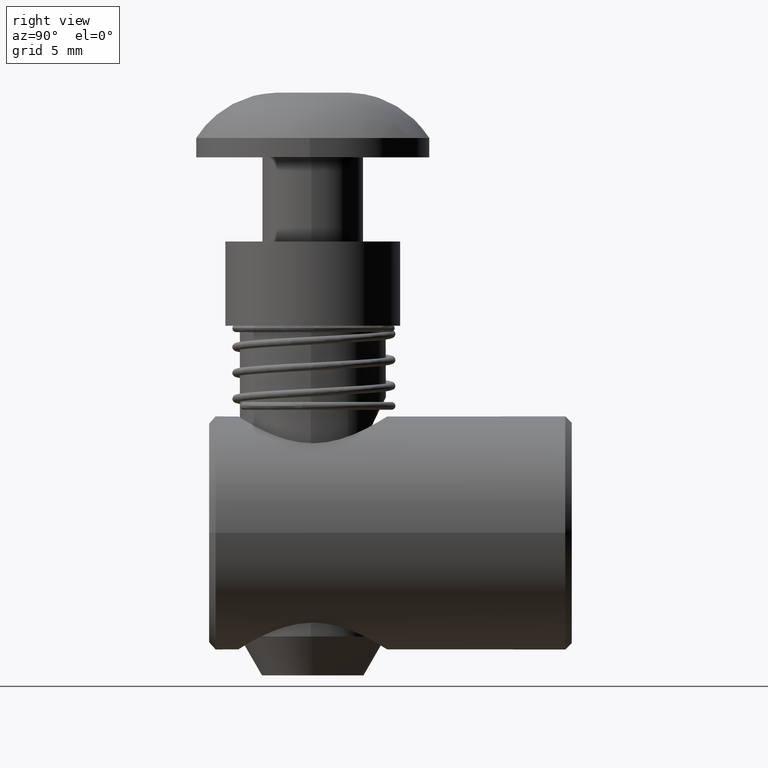
[diagram: clean part render]
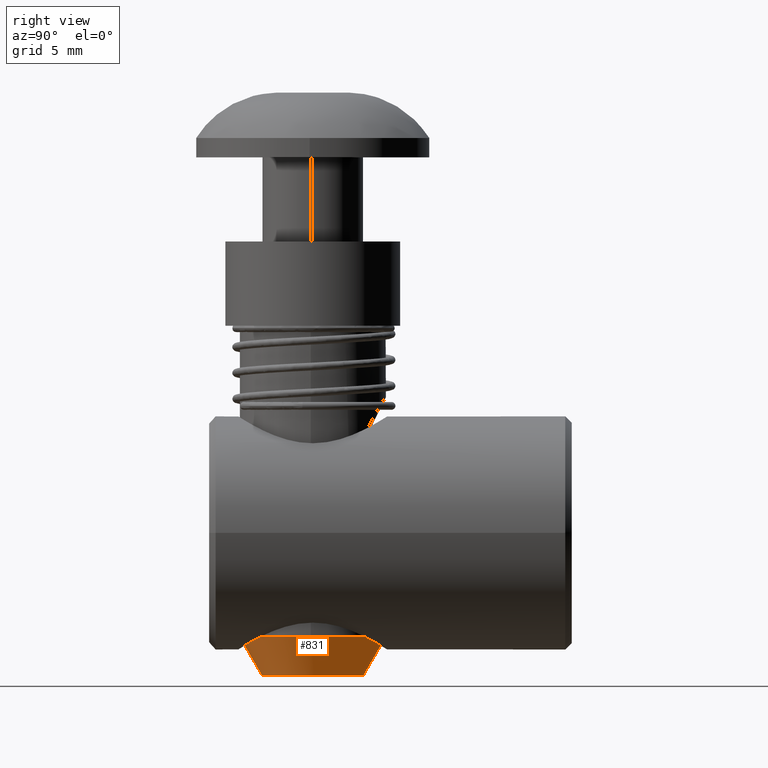
[diagram: same view with one face highlighted and labeled with its STEP entity id]
A machine part, right view. The second image highlights one B-rep face of the part: STEP entity #831.
In plain terms, the highlighted conical surface has half-angle 30 deg.
Its self-contained STEP definition (entity closure, byte-faithful):
#14 = EDGE_CURVE ( 'NONE', #2915, #2912, #891, .T. ) ;
#24 = EDGE_CURVE ( 'NONE', #2913, #1526, #902, .T. ) ;
#25 = EDGE_CURVE ( 'NONE', #2913, #2915, #905, .T. ) ;
#26 = EDGE_CURVE ( 'NONE', #1526, #1527, #906, .T. ) ;
#27 = EDGE_CURVE ( 'NONE', #1527, #2912, #908, .T. ) ;
#831 = ADVANCED_FACE ( 'NONE', ( #1950 ), #1951, .T. ) ;
#891 = LINE ( 'NONE', #1004, #892 ) ;
#892 = VECTOR ( 'NONE', #1005, 1000.000000000000100 ) ;
#902 = LINE ( 'NONE', #1120, #904 ) ;
#904 = VECTOR ( 'NONE', #1121, 1000.000000000000100 ) ;
#905 = CIRCLE ( 'NONE', #1522, 3.917949191999999600 ) ;
#906 = CIRCLE ( 'NONE', #1523, 5.649999999999998600 ) ;
#908 = CIRCLE ( 'NONE', #1524, 5.649999999999998600 ) ;
#1004 = CARTESIAN_POINT ( 'NONE',  ( -3.917949191999999600, 0.0000000000000000000, 0.0000000000000000000 ) ) ;
#1005 = DIRECTION ( 'NONE',  ( -0.5000000000933406700, 0.0000000000000000000, -0.8660254037305483700 ) ) ;
#1120 = CARTESIAN_POINT ( 'NONE',  ( 3.917949191999999600, 4.798103937204758200E-016, 0.0000000000000000000 ) ) ;
#1121 = DIRECTION ( 'NONE',  ( 0.5000000000933406700, 6.123233996879860000E-017, -0.8660254037305483700 ) ) ;
#1122 = CARTESIAN_POINT ( 'NONE',  ( 0.0000000000000000000, 0.0000000000000000000, 0.0000000000000000000 ) ) ;
#1123 = DIRECTION ( 'NONE',  ( -0.0000000000000000000, -0.0000000000000000000, 1.000000000000000000 ) ) ;
#1124 = DIRECTION ( 'NONE',  ( -1.000000000000000000, 0.0000000000000000000, 0.0000000000000000000 ) ) ;
#1125 = CARTESIAN_POINT ( 'NONE',  ( 0.0000000000000000000, 0.0000000000000000000, -2.999999999999999100 ) ) ;
#1126 = DIRECTION ( 'NONE',  ( 0.0000000000000000000, 0.0000000000000000000, 1.000000000000000000 ) ) ;
#1127 = DIRECTION ( 'NONE',  ( 1.000000000000000000, 0.0000000000000000000, -1.535153518563546600E-016 ) ) ;
#1128 = CARTESIAN_POINT ( 'NONE',  ( 0.0000000000000000000, 0.0000000000000000000, -2.999999999999999100 ) ) ;
#1129 = DIRECTION ( 'NONE',  ( 0.0000000000000000000, 0.0000000000000000000, 1.000000000000000000 ) ) ;
#1130 = DIRECTION ( 'NONE',  ( 1.000000000000000000, 0.0000000000000000000, -1.535153518563546600E-016 ) ) ;
#1452 = EDGE_LOOP ( 'NONE', ( #1481, #1480, #1479, #1477, #1478 ) ) ;
#1477 = ORIENTED_EDGE ( 'NONE', *, *, #27, .T. ) ;
#1478 = ORIENTED_EDGE ( 'NONE', *, *, #14, .F. ) ;
#1479 = ORIENTED_EDGE ( 'NONE', *, *, #26, .T. ) ;
#1480 = ORIENTED_EDGE ( 'NONE', *, *, #24, .T. ) ;
#1481 = ORIENTED_EDGE ( 'NONE', *, *, #25, .F. ) ;
#1522 = AXIS2_PLACEMENT_3D ( 'NONE', #1122, #1123, #1124 ) ;
#1523 = AXIS2_PLACEMENT_3D ( 'NONE', #1125, #1126, #1127 ) ;
#1524 = AXIS2_PLACEMENT_3D ( 'NONE', #1128, #1129, #1130 ) ;
#1526 = VERTEX_POINT ( 'NONE', #2292 ) ;
#1527 = VERTEX_POINT ( 'NONE', #2293 ) ;
#1950 = FACE_OUTER_BOUND ( 'NONE', #1452, .T. ) ;
#1951 = CONICAL_SURFACE ( 'NONE', #2835, 3.917949191999999600, 0.5235987757060794900 ) ;
#2018 = CARTESIAN_POINT ( 'NONE',  ( 0.0000000000000000000, 0.0000000000000000000, 0.0000000000000000000 ) ) ;
#2019 = DIRECTION ( 'NONE',  ( 0.0000000000000000000, 0.0000000000000000000, -1.000000000000000000 ) ) ;
#2020 = DIRECTION ( 'NONE',  ( -1.000000000000000000, 0.0000000000000000000, 0.0000000000000000000 ) ) ;
#2292 = CARTESIAN_POINT ( 'NONE',  ( 5.649999999999998600, 6.919254415182544400E-016, -2.999999999999999100 ) ) ;
#2293 = CARTESIAN_POINT ( 'NONE',  ( 6.919254415182550300E-016, 5.649999999999998600, -2.999999999999999100 ) ) ;
#2322 = CARTESIAN_POINT ( 'NONE',  ( -5.649999999999998600, 0.0000000000000000000, -2.999999999999999100 ) ) ;
#2323 = CARTESIAN_POINT ( 'NONE',  ( 3.917949191999999600, 5.858679176193651800E-016, 0.0000000000000000000 ) ) ;
#2325 = CARTESIAN_POINT ( 'NONE',  ( -3.917949191999999600, 0.0000000000000000000, 0.0000000000000000000 ) ) ;
#2835 = AXIS2_PLACEMENT_3D ( 'NONE', #2018, #2019, #2020 ) ;
#2912 = VERTEX_POINT ( 'NONE', #2322 ) ;
#2913 = VERTEX_POINT ( 'NONE', #2323 ) ;
#2915 = VERTEX_POINT ( 'NONE', #2325 ) ;